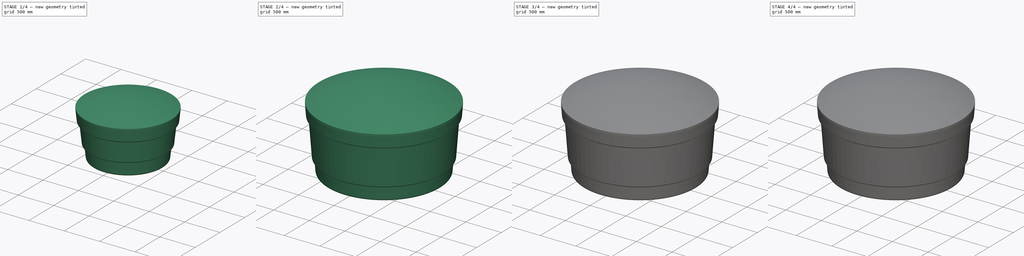
[diagram: build sequence overview — one tinted view per stage of 4, left to right]
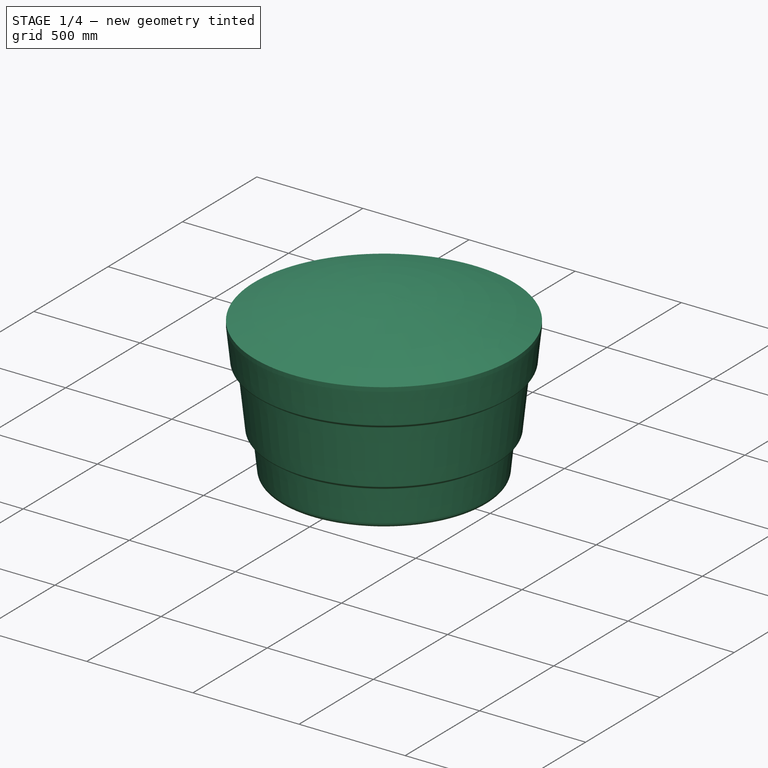
[diagram: stage 1 of 4 — iso view after this stage's code; geometry added in this stage tinted green]
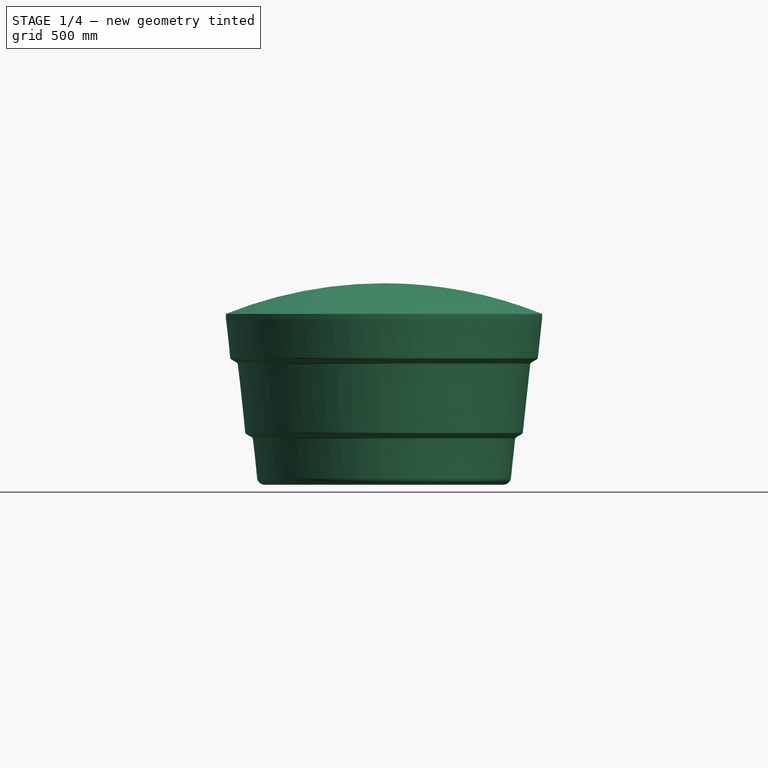
[diagram: stage 1 of 4 — front view after this stage's code; geometry added in this stage tinted green]
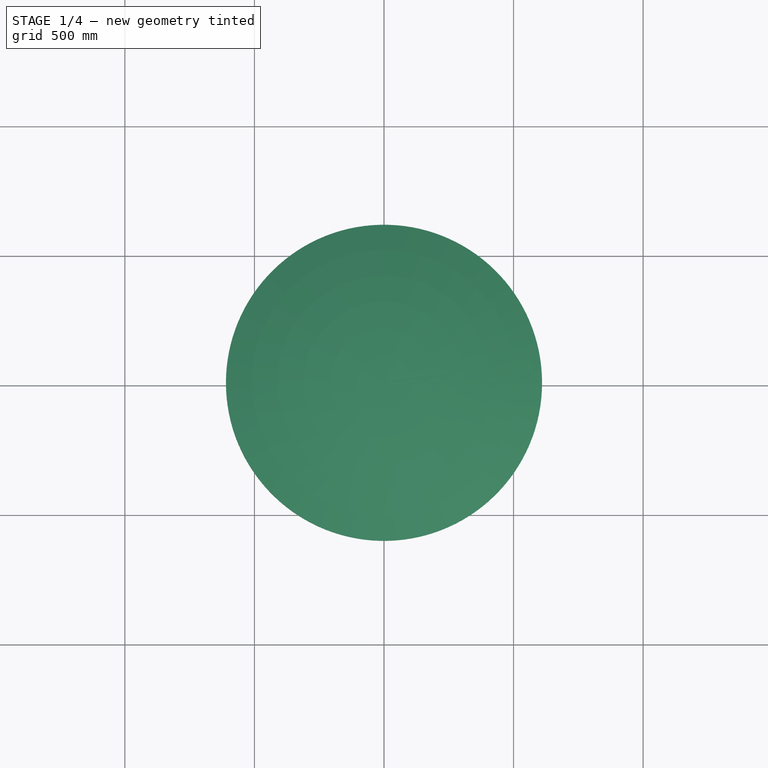
[diagram: stage 1 of 4 — top view after this stage's code; geometry added in this stage tinted green]
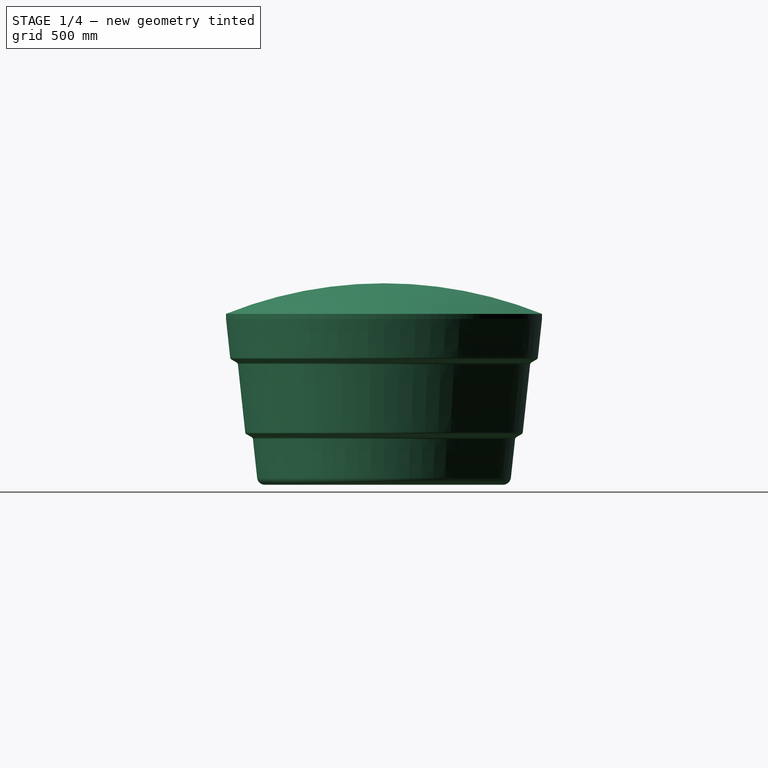
[diagram: stage 1 of 4 — right view after this stage's code; geometry added in this stage tinted green]
FCSTD DOCUMENT  (FreeCAD 0.20R29410 (Git))
Label: Caixa de água
License: All rights reserved
objects: Sketcher::SketchObject×8, Part::Revolution×8, Part::Compound×4
note: 20 computed .brp shape members not serialized (recipe doc carries the construction recipe); baked Part::Feature solids carry a one-line shape summary decoded from their .brp

FEATURE [Sketcher::SketchObject] Sketch006
  FullyConstrained = true
  Placement = pos=(0,0,0) rot=(1,0,0;1.5708rad)
  sketch-geometry (13):
    g0: LineSegment StartX=0 StartY=0 StartZ=0 EndX=460 EndY=0 EndZ=0
    g1: LineSegment StartX=489.827 StartY=26.7815 StartZ=0 EndX=505.92 EndY=175.916 EndZ=0
    g2: LineSegment StartX=510.862 StartY=183.503 StartZ=0 EndX=530.862 EndY=195.05 EndZ=0
    g3: LineSegment StartX=535.804 StartY=202.638 StartZ=0 EndX=564.023 EndY=464.144 EndZ=0
    g4: LineSegment StartX=568.965 StartY=471.731 StartZ=0 EndX=588.965 EndY=483.278 EndZ=0
    g5: LineSegment StartX=593.907 StartY=490.866 StartZ=0 EndX=610 EndY=640 EndZ=0
    g6: ArcOfCircle CenterX=460 CenterY=30 CenterZ=0 NormalX=0 NormalY=0 NormalZ=1 AngleXU=0 Radius=30 StartAngle=4.71239 EndAngle=6.17569
    g7: ArcOfCircle CenterX=515.862 CenterY=174.843 CenterZ=0 NormalX=0 NormalY=0 NormalZ=1 AngleXU=0 Radius=10 StartAngle=2.0944 EndAngle=3.0341
    g8: ArcOfCircle CenterX=525.862 CenterY=203.71 CenterZ=0 NormalX=0 NormalY=0 NormalZ=1 AngleXU=0 Radius=10 StartAngle=5.23599 EndAngle=6.17569
    g9: ArcOfCircle CenterX=573.965 CenterY=463.071 CenterZ=0 NormalX=0 NormalY=0 NormalZ=1 AngleXU=0 Radius=10 StartAngle=2.0944 EndAngle=3.0341
    g10: ArcOfCircle CenterX=583.965 CenterY=491.939 CenterZ=0 NormalX=0 NormalY=0 NormalZ=1 AngleXU=0 Radius=10 StartAngle=5.23599 EndAngle=6.17569
    g11: LineSegment StartX=610 StartY=640 StartZ=0 EndX=0 EndY=640 EndZ=0
    g12: LineSegment StartX=0 StartY=640 StartZ=0 EndX=0 EndY=0 EndZ=0
  constraints (33):
    c: Coincident(g0,g-1)
    c: Horizontal(g0)
    c: Parallel(g1,g3)
    c: Parallel(g3,g5)
    c: Tangent(g0,g6) = -1.5708
    c: Tangent(g1,g6) = -1.5708
    c: Tangent(g1,g7) = 1.5708
    c: Tangent(g2,g7) = 1.5708
    c: Tangent(g2,g8) = -1.5708
    c: Tangent(g3,g8) = -1.5708
    c: Tangent(g3,g9) = 1.5708
    c: Tangent(g4,g9) = 1.5708
    c: Tangent(g4,g10) = -1.5708
    c: Tangent(g5,g10) = -1.5708
    c: Radius(g6) = 30
    c: Radius(g7) = 10
    c: Equal(g8,g7)
    c: Equal(g8,g9)
    c: Equal(g9,g10)
    c: DistanceX(g4,g4) = 20
    c: Equal(g2,g4)
    c: DistanceX(g0,g0) = 460
    c: Coincident(g11,g5)
    c: PointOnObject(g11,g-2)
    c: Horizontal(g11)
    c: DistanceX(g11,g11) = 610
    c: Distance(g5) = 150
    c: DistanceY(g0,g11) = 640
    c: Distance(g1) = 150
    c: Angle(g4) = 0.523599
    c: Parallel(g4,g2)
    c: Coincident(g12,g11)
    c: Coincident(g12,g0)
FEATURE [Part::Revolution] Revolve006
  Angle = 360
  Axis = (0,0,1)
  Base = (0,0,0)
  FaceMakerClass = Part::FaceMakerBullseye
  Solid = true
  Source = -> Sketch006
  Symmetric = false
FEATURE [Sketcher::SketchObject] Sketch007
  FullyConstrained = true
  Placement = pos=(0,0,0) rot=(1,0,0;1.5708rad)
  sketch-geometry (6):
    g0: ArcOfCircle CenterX=0 CenterY=-1515.69 CenterZ=0 NormalX=0 NormalY=0 NormalZ=1 AngleXU=0 Radius=1635.69 StartAngle=1.18863 EndAngle=1.5708
    g1: LineSegment StartX=610 StartY=2 StartZ=0 EndX=610 EndY=-18 EndZ=0
    g2: LineSegment StartX=610 StartY=-18 StartZ=0 EndX=607 EndY=-18 EndZ=0
    g3: LineSegment StartX=607 StartY=-18 StartZ=0 EndX=607 EndY=2.274e-13 EndZ=0
    g4: ArcOfCircle CenterX=0 CenterY=-1516.07 CenterZ=0 NormalX=0 NormalY=0 NormalZ=1 AngleXU=0 Radius=1633.07 StartAngle=1.18996 EndAngle=1.5708
    g5: LineSegment StartX=1.002e-13 StartY=120 StartZ=0 EndX=1e-13 EndY=117 EndZ=0
  constraints (20):
    c: DistanceX(g-1,g0) = 610
    c: PointOnObject(g0,g-2)
    c: Vertical(g1)
    c: Coincident(g2,g1)
    c: Horizontal(g2)
    c: Coincident(g3,g2)
    c: Vertical(g3)
    c: DistanceY(g-1,g0) = 120
    c: Coincident(g4,g3)
    c: PointOnObject(g4,g-2)
    c: DistanceX(g2,g2) = 3
    c: Coincident(g1,g0)
    c: DistanceY(g4,g0) = 3
    c: DistanceY(g3,g0) = 2
    c: PointOnObject(g4,g-2)
    c: PointOnObject(g0,g-2)
    c: PointOnObject(g3,g-1)
    c: DistanceY(g1,g1) = 20
    c: Coincident(g5,g0)
    c: Coincident(g5,g4)
FEATURE [Part::Revolution] Revolve007
  Angle = 360
  Axis = (0,0,1)
  Base = (0,0,0)
  FaceMakerClass = Part::FaceMakerBullseye
  Placement = pos=(0,0,657.411) rot=(0,0,1;0rad)
  Solid = true
  Source = -> Sketch007
  Symmetric = false
FEATURE [Part::Compound] Compound003  label="Caixa de água 500 L"
  Links = -> [Revolve006,Revolve007]
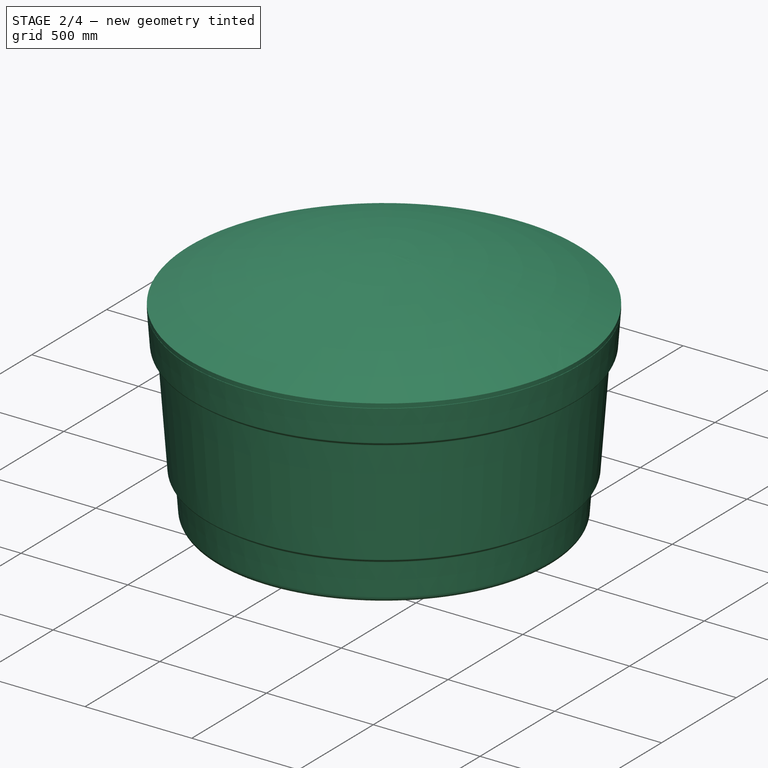
[diagram: stage 2 of 4 — iso view after this stage's code; geometry added in this stage tinted green]
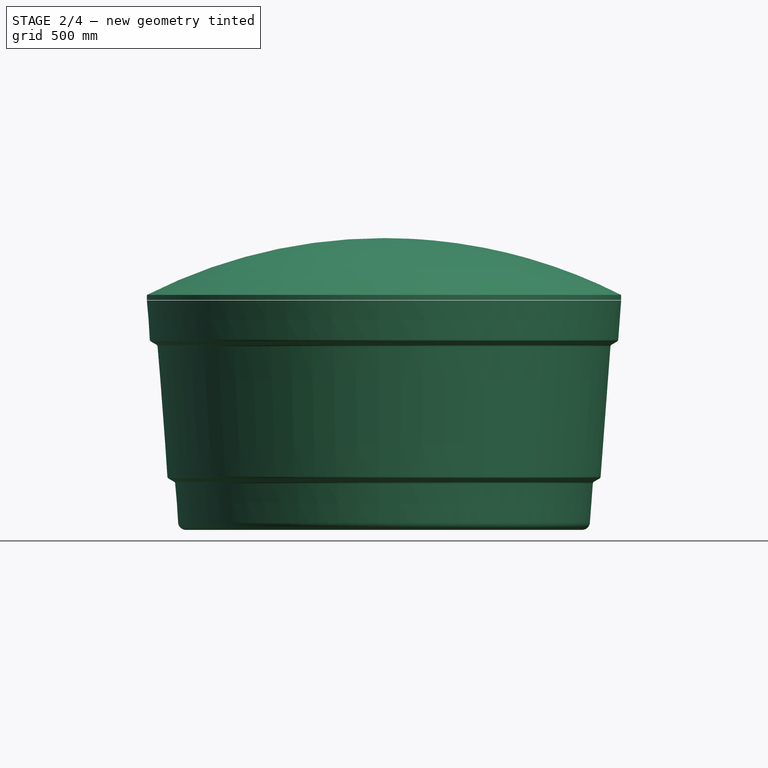
[diagram: stage 2 of 4 — front view after this stage's code; geometry added in this stage tinted green]
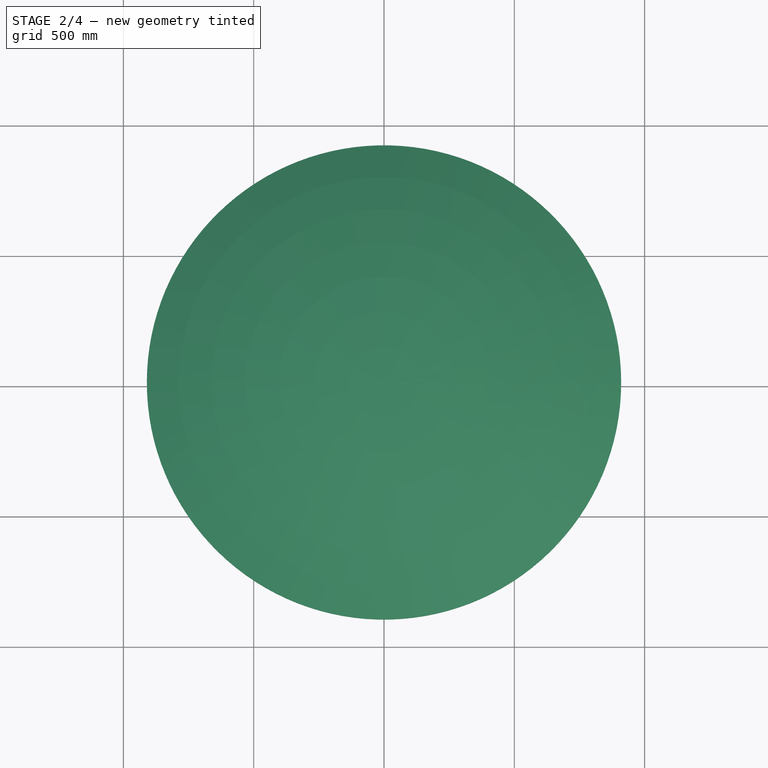
[diagram: stage 2 of 4 — top view after this stage's code; geometry added in this stage tinted green]
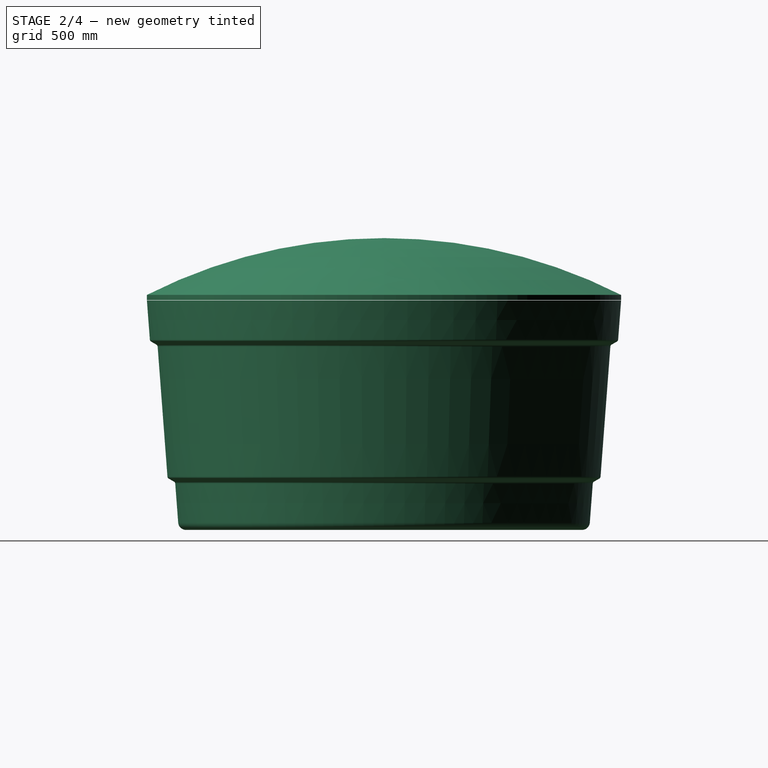
[diagram: stage 2 of 4 — right view after this stage's code; geometry added in this stage tinted green]
FEATURE [Sketcher::SketchObject] Sketch004
  FullyConstrained = true
  Placement = pos=(0,0,0) rot=(1,0,0;1.5708rad)
  sketch-geometry (13):
    g0: LineSegment StartX=0 StartY=0 StartZ=0 EndX=760 EndY=0 EndZ=0
    g1: LineSegment StartX=789.915 StartY=27.742 StartZ=0 EndX=801.205 EndY=177.317 EndZ=0
    g2: LineSegment StartX=806.177 StartY=185.224 StartZ=0 EndX=826.177 EndY=196.771 EndZ=0
    g3: LineSegment StartX=831.148 StartY=204.679 StartZ=0 EndX=868.767 EndY=703.063 EndZ=0
    g4: LineSegment StartX=873.738 StartY=710.971 StartZ=0 EndX=893.738 EndY=722.518 EndZ=0
    g5: LineSegment StartX=898.71 StartY=730.425 StartZ=0 EndX=910 EndY=880 EndZ=0
    g6: ArcOfCircle CenterX=760 CenterY=30 CenterZ=0 NormalX=0 NormalY=0 NormalZ=1 AngleXU=0 Radius=30 StartAngle=4.71239 EndAngle=6.20785
    g7: ArcOfCircle CenterX=811.177 CenterY=176.564 CenterZ=0 NormalX=0 NormalY=0 NormalZ=1 AngleXU=0 Radius=10 StartAngle=2.0944 EndAngle=3.06625
    g8: ArcOfCircle CenterX=821.177 CenterY=205.431 CenterZ=0 NormalX=0 NormalY=0 NormalZ=1 AngleXU=0 Radius=10 StartAngle=5.23599 EndAngle=6.20785
    g9: ArcOfCircle CenterX=878.738 CenterY=702.311 CenterZ=0 NormalX=0 NormalY=0 NormalZ=1 AngleXU=0 Radius=10 StartAngle=2.0944 EndAngle=3.06625
    g10: ArcOfCircle CenterX=888.738 CenterY=731.178 CenterZ=0 NormalX=0 NormalY=0 NormalZ=1 AngleXU=0 Radius=10 StartAngle=5.23599 EndAngle=6.20785
    g11: LineSegment StartX=910 StartY=880 StartZ=0 EndX=0 EndY=880 EndZ=0
    g12: LineSegment StartX=0 StartY=880 StartZ=0 EndX=0 EndY=0 EndZ=0
  constraints (33):
    c: Coincident(g0,g-1)
    c: Horizontal(g0)
    c: Parallel(g1,g3)
    c: Parallel(g3,g5)
    c: Tangent(g0,g6) = -1.5708
    c: Tangent(g1,g6) = -1.5708
    c: Tangent(g1,g7) = 1.5708
    c: Tangent(g2,g7) = 1.5708
    c: Tangent(g2,g8) = -1.5708
    c: Tangent(g3,g8) = -1.5708
    c: Tangent(g3,g9) = 1.5708
    c: Tangent(g4,g9) = 1.5708
    c: Tangent(g4,g10) = -1.5708
    c: Tangent(g5,g10) = -1.5708
    c: Radius(g6) = 30
    c: Radius(g7) = 10
    c: Equal(g8,g7)
    c: Equal(g8,g9)
    c: Equal(g9,g10)
    c: DistanceX(g4,g4) = 20
    c: Equal(g2,g4)
    c: DistanceX(g0,g0) = 760
    c: Coincident(g11,g5)
    c: PointOnObject(g11,g-2)
    c: Horizontal(g11)
    c: DistanceX(g11,g11) = 910
    c: Distance(g5) = 150
    c: DistanceY(g0,g11) = 880
    c: Distance(g1) = 150
    c: Angle(g4) = 0.523599
    c: Parallel(g4,g2)
    c: Coincident(g12,g11)
    c: Coincident(g12,g0)
FEATURE [Part::Revolution] Revolve004
  Angle = 360
  Axis = (0,0,1)
  Base = (0,0,0)
  FaceMakerClass = Part::FaceMakerBullseye
  Solid = true
  Source = -> Sketch004
  Symmetric = false
FEATURE [Sketcher::SketchObject] Sketch005
  FullyConstrained = true
  Placement = pos=(0,0,0) rot=(1,0,0;1.5708rad)
  sketch-geometry (6):
    g0: ArcOfCircle CenterX=0 CenterY=-1788.31 CenterZ=0 NormalX=0 NormalY=0 NormalZ=1 AngleXU=0 Radius=2008.31 StartAngle=1.10054 EndAngle=1.5708
    g1: LineSegment StartX=910 StartY=2 StartZ=0 EndX=910 EndY=-18 EndZ=0
    g2: LineSegment StartX=910 StartY=-18 StartZ=0 EndX=907 EndY=-18 EndZ=0
    g3: LineSegment StartX=907 StartY=-18 StartZ=0 EndX=907 EndY=-2.274e-13 EndZ=0
    g4: ArcOfCircle CenterX=0 CenterY=-1787 CenterZ=0 NormalX=0 NormalY=0 NormalZ=1 AngleXU=0 Radius=2004 StartAngle=1.10112 EndAngle=1.5708
    g5: LineSegment StartX=1.23e-13 StartY=220 StartZ=0 EndX=0 EndY=217 EndZ=0
  constraints (20):
    c: DistanceX(g-1,g0) = 910
    c: PointOnObject(g0,g-2)
    c: Vertical(g1)
    c: Coincident(g2,g1)
    c: Horizontal(g2)
    c: Coincident(g3,g2)
    c: Vertical(g3)
    c: DistanceY(g-1,g0) = 220
    c: Coincident(g4,g3)
    c: PointOnObject(g4,g-2)
    c: DistanceX(g2,g2) = 3
    c: Coincident(g1,g0)
    c: DistanceY(g4,g0) = 3
    c: DistanceY(g3,g0) = 2
    c: PointOnObject(g4,g-2)
    c: PointOnObject(g0,g-2)
    c: PointOnObject(g3,g-1)
    c: DistanceY(g1,g1) = 20
    c: Coincident(g5,g0)
    c: Coincident(g5,g4)
FEATURE [Part::Revolution] Revolve005
  Angle = 360
  Axis = (0,0,1)
  Base = (0,0,0)
  FaceMakerClass = Part::FaceMakerBullseye
  Placement = pos=(0,0,899.521) rot=(0,0,1;0rad)
  Solid = true
  Source = -> Sketch005
  Symmetric = false
FEATURE [Part::Compound] Compound002  label="Caixa de água 2000 L"
  Links = -> [Revolve004,Revolve005]
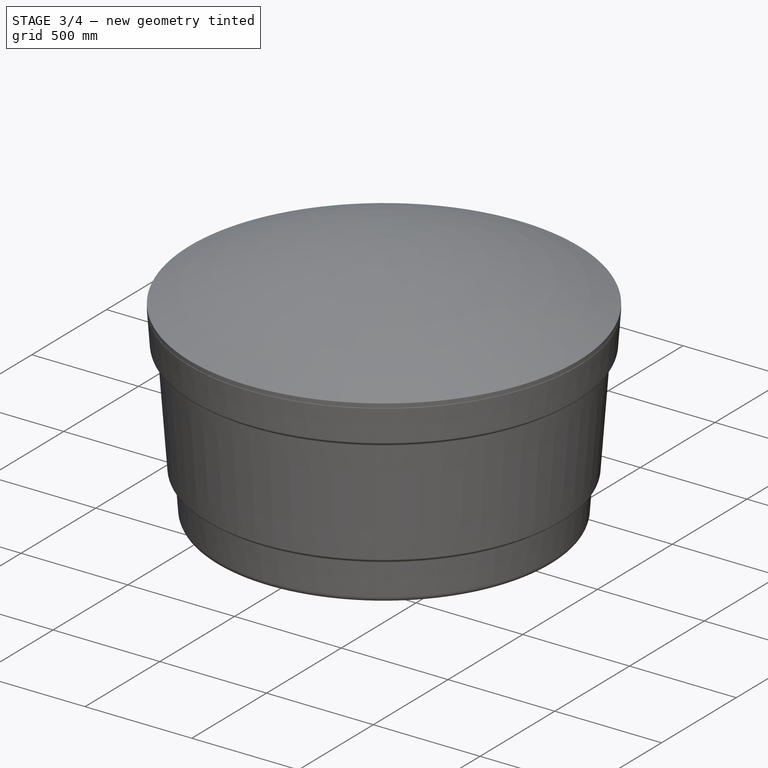
[diagram: stage 3 of 4 — iso view after this stage's code; geometry added in this stage tinted green]
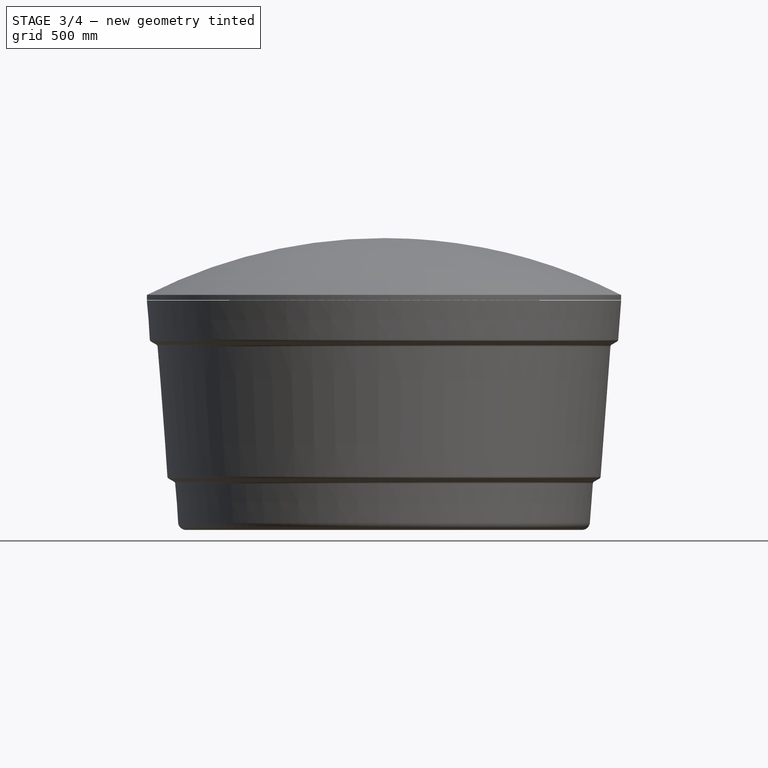
[diagram: stage 3 of 4 — front view after this stage's code; geometry added in this stage tinted green]
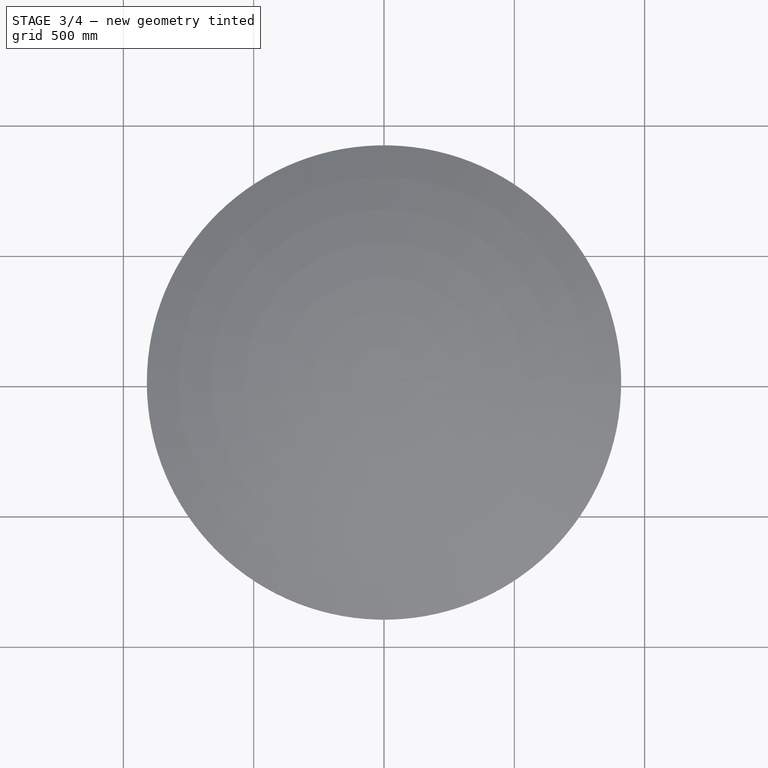
[diagram: stage 3 of 4 — top view after this stage's code; geometry added in this stage tinted green]
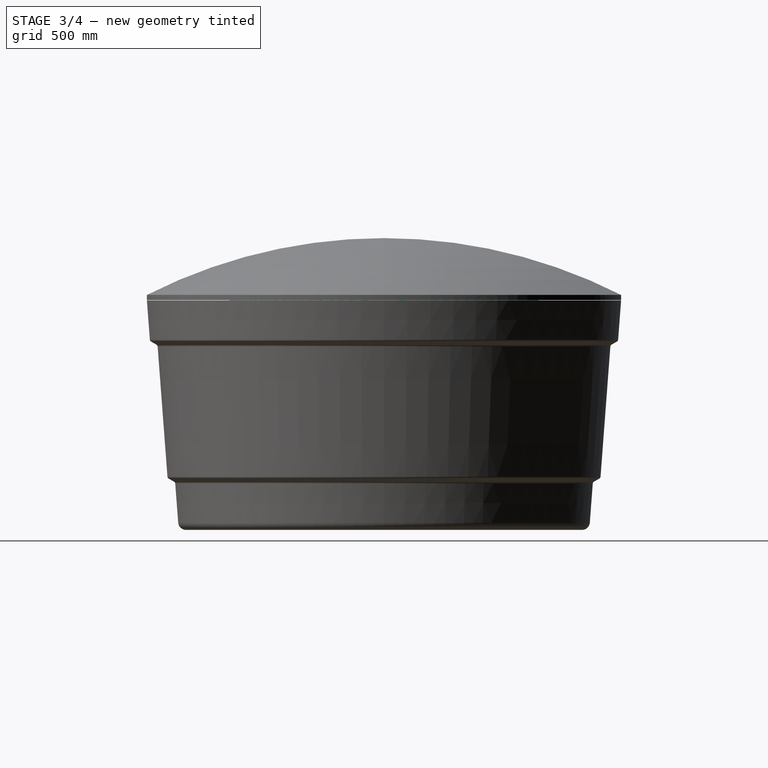
[diagram: stage 3 of 4 — right view after this stage's code; geometry added in this stage tinted green]
FEATURE [Sketcher::SketchObject] Sketch002
  FullyConstrained = true
  Placement = pos=(0,0,0) rot=(1,0,0;1.5708rad)
  sketch-geometry (13):
    g0: LineSegment StartX=0 StartY=0 StartZ=0 EndX=700 EndY=0 EndZ=0
    g1: LineSegment StartX=729.882 StartY=27.3452 StartZ=0 EndX=743.156 EndY=176.757 EndZ=0
    g2: LineSegment StartX=748.117 StartY=184.532 StartZ=0 EndX=768.117 EndY=196.079 EndZ=0
    g3: LineSegment StartX=773.078 StartY=203.854 StartZ=0 EndX=806.805 EndY=583.491 EndZ=0
    g4: LineSegment StartX=811.765 StartY=591.266 StartZ=0 EndX=831.765 EndY=602.813 EndZ=0
    g5: LineSegment StartX=836.726 StartY=610.588 StartZ=0 EndX=850 EndY=760 EndZ=0
    g6: ArcOfCircle CenterX=700 CenterY=30 CenterZ=0 NormalX=0 NormalY=0 NormalZ=1 AngleXU=0 Radius=30 StartAngle=4.71239 EndAngle=6.19458
    g7: ArcOfCircle CenterX=753.117 CenterY=175.872 CenterZ=0 NormalX=0 NormalY=0 NormalZ=1 AngleXU=0 Radius=10 StartAngle=2.0944 EndAngle=3.05298
    g8: ArcOfCircle CenterX=763.117 CenterY=204.739 CenterZ=0 NormalX=0 NormalY=0 NormalZ=1 AngleXU=0 Radius=10 StartAngle=5.23599 EndAngle=6.19458
    g9: ArcOfCircle CenterX=816.765 CenterY=582.606 CenterZ=0 NormalX=0 NormalY=0 NormalZ=1 AngleXU=0 Radius=10 StartAngle=2.0944 EndAngle=3.05298
    g10: ArcOfCircle CenterX=826.765 CenterY=611.473 CenterZ=0 NormalX=0 NormalY=0 NormalZ=1 AngleXU=0 Radius=10 StartAngle=5.23599 EndAngle=6.19458
    g11: LineSegment StartX=850 StartY=760 StartZ=0 EndX=0 EndY=760 EndZ=0
    g12: LineSegment StartX=0 StartY=760 StartZ=0 EndX=0 EndY=0 EndZ=0
  constraints (33):
    c: Coincident(g0,g-1)
    c: Horizontal(g0)
    c: Parallel(g1,g3)
    c: Parallel(g3,g5)
    c: Tangent(g0,g6) = -1.5708
    c: Tangent(g1,g6) = -1.5708
    c: Tangent(g1,g7) = 1.5708
    c: Tangent(g2,g7) = 1.5708
    c: Tangent(g2,g8) = -1.5708
    c: Tangent(g3,g8) = -1.5708
    c: Tangent(g3,g9) = 1.5708
    c: Tangent(g4,g9) = 1.5708
    c: Tangent(g4,g10) = -1.5708
    c: Tangent(g5,g10) = -1.5708
    c: Radius(g6) = 30
    c: Radius(g7) = 10
    c: Equal(g8,g7)
    c: Equal(g8,g9)
    c: Equal(g9,g10)
    c: DistanceX(g4,g4) = 20
    c: Equal(g2,g4)
    c: DistanceX(g0,g0) = 700
    c: Coincident(g11,g5)
    c: PointOnObject(g11,g-2)
    c: Horizontal(g11)
    c: DistanceX(g11,g11) = 850
    c: Distance(g5) = 150
    c: DistanceY(g0,g11) = 760
    c: Distance(g1) = 150
    c: Angle(g4) = 0.523599
    c: Parallel(g4,g2)
    c: Coincident(g12,g11)
    c: Coincident(g12,g0)
FEATURE [Part::Revolution] Revolve002
  Angle = 360
  Axis = (0,0,1)
  Base = (0,0,0)
  FaceMakerClass = Part::FaceMakerBullseye
  Solid = true
  Source = -> Sketch002
  Symmetric = false
FEATURE [Sketcher::SketchObject] Sketch003
  FullyConstrained = true
  Placement = pos=(0,0,0) rot=(1,0,0;1.5708rad)
  sketch-geometry (6):
    g0: ArcOfCircle CenterX=0 CenterY=-1671.88 CenterZ=0 NormalX=0 NormalY=0 NormalZ=1 AngleXU=0 Radius=1881.88 StartAngle=1.09619 EndAngle=1.5708
    g1: LineSegment StartX=860 StartY=2 StartZ=0 EndX=860 EndY=-18 EndZ=0
    g2: LineSegment StartX=860 StartY=-18 StartZ=0 EndX=857 EndY=-18 EndZ=0
    g3: LineSegment StartX=857 StartY=-18 StartZ=0 EndX=857 EndY=0 EndZ=0
    g4: ArcOfCircle CenterX=0 CenterY=-1670.53 CenterZ=0 NormalX=0 NormalY=0 NormalZ=1 AngleXU=0 Radius=1877.53 StartAngle=1.09679 EndAngle=1.5708
    g5: LineSegment StartX=1.152e-13 StartY=210 StartZ=0 EndX=0 EndY=207 EndZ=0
  constraints (20):
    c: DistanceX(g-1,g0) = 860
    c: PointOnObject(g0,g-2)
    c: Vertical(g1)
    c: Coincident(g2,g1)
    c: Horizontal(g2)
    c: Coincident(g3,g2)
    c: Vertical(g3)
    c: DistanceY(g-1,g0) = 210
    c: Coincident(g4,g3)
    c: PointOnObject(g4,g-2)
    c: DistanceX(g2,g2) = 3
    c: Coincident(g1,g0)
    c: DistanceY(g4,g0) = 3
    c: DistanceY(g3,g0) = 2
    c: PointOnObject(g4,g-2)
    c: PointOnObject(g0,g-2)
    c: PointOnObject(g3,g-1)
    c: DistanceY(g1,g1) = 20
    c: Coincident(g5,g0)
    c: Coincident(g5,g4)
FEATURE [Part::Revolution] Revolve003
  Angle = 360
  Axis = (0,0,1)
  Base = (0,0,0)
  FaceMakerClass = Part::FaceMakerBullseye
  Placement = pos=(0,0,768.096) rot=(0,0,1;0rad)
  Solid = true
  Source = -> Sketch003
  Symmetric = false
FEATURE [Part::Compound] Compound001  label="Caixa de água 1500 L"
  Links = -> [Revolve002,Revolve003]
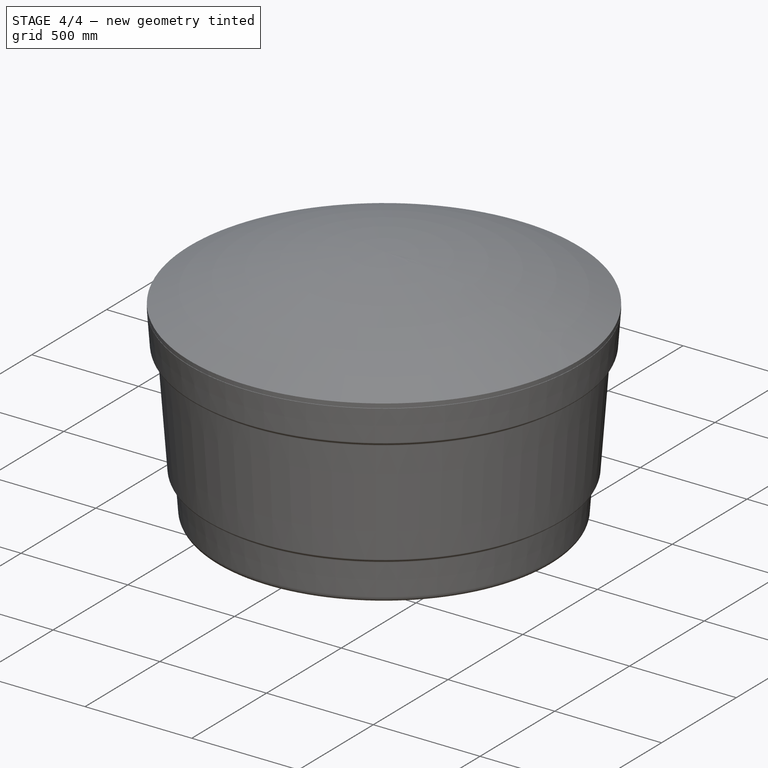
[diagram: stage 4 of 4 — iso view after this stage's code; geometry added in this stage tinted green]
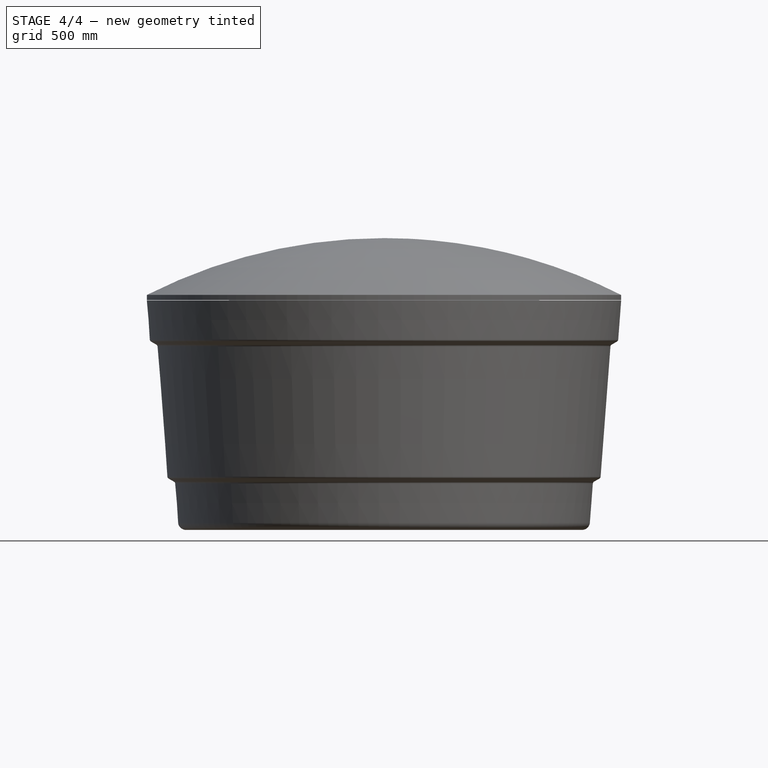
[diagram: stage 4 of 4 — front view after this stage's code; geometry added in this stage tinted green]
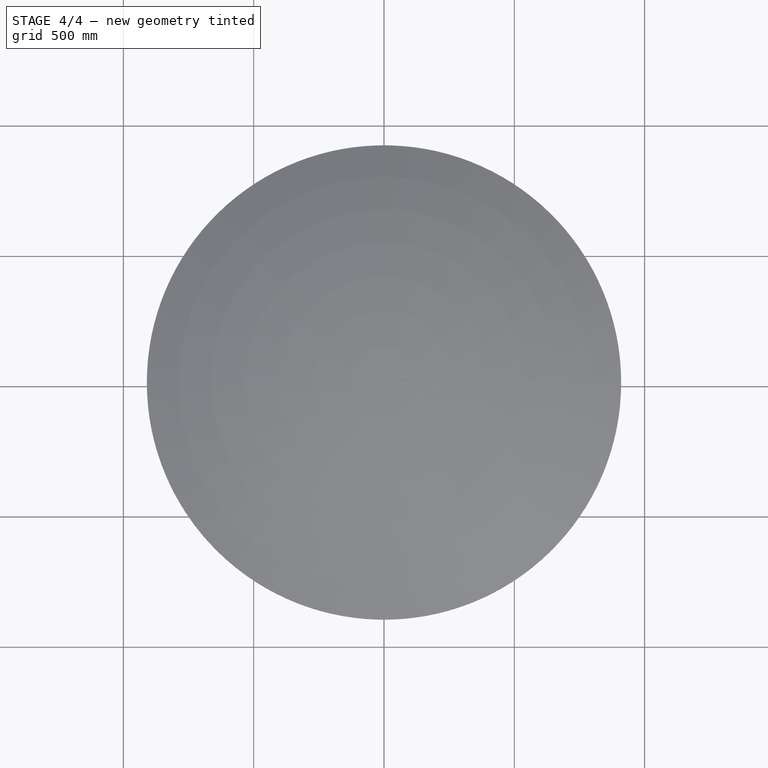
[diagram: stage 4 of 4 — top view after this stage's code; geometry added in this stage tinted green]
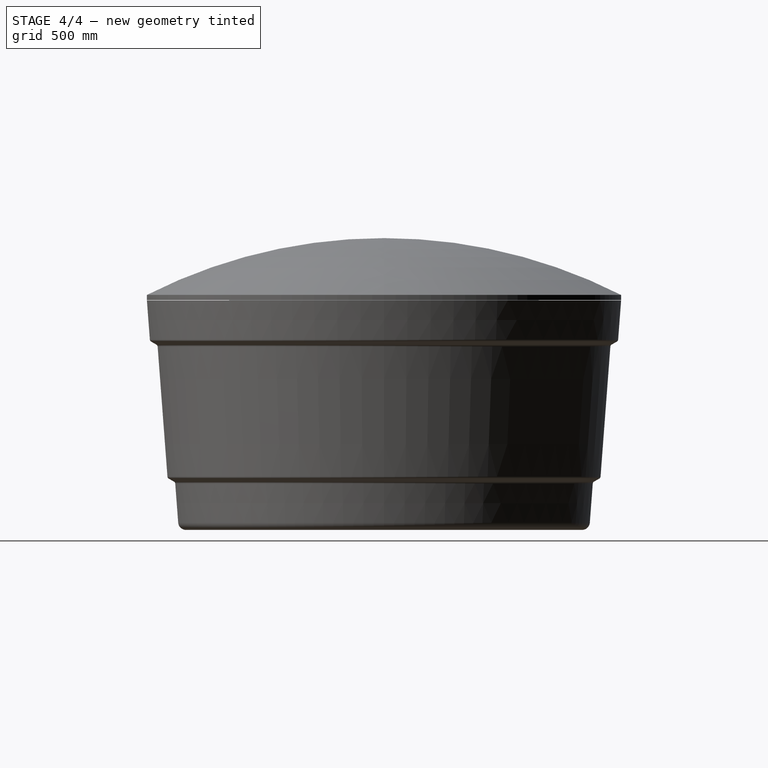
[diagram: stage 4 of 4 — right view after this stage's code; geometry added in this stage tinted green]
FEATURE [Sketcher::SketchObject] Sketch
  FullyConstrained = true
  Placement = pos=(0,0,0) rot=(1,0,0;1.5708rad)
  sketch-geometry (13):
    g0: LineSegment StartX=0 StartY=0 StartZ=0 EndX=580 EndY=0 EndZ=0
    g1: LineSegment StartX=609.792 StartY=26.4763 StartZ=0 EndX=627.411 EndY=175.438 EndZ=0
    g2: LineSegment StartX=632.342 StartY=182.924 StartZ=0 EndX=652.342 EndY=194.471 EndZ=0
    g3: LineSegment StartX=657.272 StartY=201.956 StartZ=0 EndX=702.52 EndY=584.52 EndZ=0
    g4: LineSegment StartX=707.451 StartY=592.006 StartZ=0 EndX=727.451 EndY=603.553 EndZ=0
    g5: LineSegment StartX=732.382 StartY=611.038 StartZ=0 EndX=750 EndY=760 EndZ=0
    g6: ArcOfCircle CenterX=580 CenterY=30 CenterZ=0 NormalX=0 NormalY=0 NormalZ=1 AngleXU=0 Radius=30 StartAngle=4.71239 EndAngle=6.16546
    g7: ArcOfCircle CenterX=637.342 CenterY=174.263 CenterZ=0 NormalX=0 NormalY=0 NormalZ=1 AngleXU=0 Radius=10 StartAngle=2.0944 EndAngle=3.02386
    g8: ArcOfCircle CenterX=647.342 CenterY=203.131 CenterZ=0 NormalX=0 NormalY=0 NormalZ=1 AngleXU=0 Radius=10 StartAngle=5.23599 EndAngle=6.16546
    g9: ArcOfCircle CenterX=712.451 CenterY=583.345 CenterZ=0 NormalX=0 NormalY=0 NormalZ=1 AngleXU=0 Radius=10 StartAngle=2.0944 EndAngle=3.02386
    g10: ArcOfCircle CenterX=722.451 CenterY=612.213 CenterZ=0 NormalX=0 NormalY=0 NormalZ=1 AngleXU=0 Radius=10 StartAngle=5.23599 EndAngle=6.16546
    g11: LineSegment StartX=750 StartY=760 StartZ=0 EndX=0 EndY=760 EndZ=0
    g12: LineSegment StartX=0 StartY=760 StartZ=0 EndX=0 EndY=0 EndZ=0
  constraints (33):
    c: Coincident(g0,g-1)
    c: Horizontal(g0)
    c: Parallel(g1,g3)
    c: Parallel(g3,g5)
    c: Tangent(g0,g6) = -1.5708
    c: Tangent(g1,g6) = -1.5708
    c: Tangent(g1,g7) = 1.5708
    c: Tangent(g2,g7) = 1.5708
    c: Tangent(g2,g8) = -1.5708
    c: Tangent(g3,g8) = -1.5708
    c: Tangent(g3,g9) = 1.5708
    c: Tangent(g4,g9) = 1.5708
    c: Tangent(g4,g10) = -1.5708
    c: Tangent(g5,g10) = -1.5708
    c: Radius(g6) = 30
    c: Radius(g7) = 10
    c: Equal(g8,g7)
    c: Equal(g8,g9)
    c: Equal(g9,g10)
    c: DistanceX(g4,g4) = 20
    c: Equal(g2,g4)
    c: DistanceX(g0,g0) = 580
    c: Coincident(g11,g5)
    c: PointOnObject(g11,g-2)
    c: Horizontal(g11)
    c: DistanceX(g11,g11) = 750
    c: Distance(g5) = 150
    c: DistanceY(g0,g11) = 760
    c: Distance(g1) = 150
    c: Angle(g4) = 0.523599
    c: Parallel(g4,g2)
    c: Coincident(g12,g11)
    c: Coincident(g12,g0)
FEATURE [Part::Revolution] Revolve
  Angle = 360
  Axis = (0,0,1)
  Base = (0,0,0)
  FaceMakerClass = Part::FaceMakerBullseye
  Solid = true
  Source = -> Sketch
  Symmetric = false
FEATURE [Sketcher::SketchObject] Sketch001
  FullyConstrained = true
  Placement = pos=(0,0,0) rot=(1,0,0;1.5708rad)
  sketch-geometry (6):
    g0: ArcOfCircle CenterX=0 CenterY=-1282.46 CenterZ=0 NormalX=0 NormalY=0 NormalZ=1 AngleXU=0 Radius=1492.46 StartAngle=1.03651 EndAngle=1.5708
    g1: LineSegment StartX=760 StartY=2 StartZ=0 EndX=760 EndY=-18 EndZ=0
    g2: LineSegment StartX=760 StartY=-18 StartZ=0 EndX=757 EndY=-18 EndZ=0
    g3: LineSegment StartX=757 StartY=-18 StartZ=0 EndX=757 EndY=0 EndZ=0
    g4: ArcOfCircle CenterX=0 CenterY=-1280.68 CenterZ=0 NormalX=0 NormalY=0 NormalZ=1 AngleXU=0 Radius=1487.68 StartAngle=1.03695 EndAngle=1.5708
    g5: LineSegment StartX=9.14e-14 StartY=210 StartZ=0 EndX=9.11e-14 EndY=207 EndZ=0
  constraints (20):
    c: DistanceX(g-1,g0) = 760
    c: PointOnObject(g0,g-2)
    c: Vertical(g1)
    c: Coincident(g2,g1)
    c: Horizontal(g2)
    c: Coincident(g3,g2)
    c: Vertical(g3)
    c: DistanceY(g-1,g0) = 210
    c: Coincident(g4,g3)
    c: PointOnObject(g4,g-2)
    c: DistanceX(g2,g2) = 3
    c: Coincident(g1,g0)
    c: DistanceY(g4,g0) = 3
    c: DistanceY(g3,g0) = 2
    c: PointOnObject(g4,g-2)
    c: PointOnObject(g0,g-2)
    c: PointOnObject(g3,g-1)
    c: DistanceY(g1,g1) = 20
    c: Coincident(g5,g0)
    c: Coincident(g5,g4)
FEATURE [Part::Revolution] Revolve001
  Angle = 360
  Axis = (0,0,1)
  Base = (0,0,0)
  FaceMakerClass = Part::FaceMakerBullseye
  Placement = pos=(0,0,768.096) rot=(0,0,1;0rad)
  Solid = true
  Source = -> Sketch001
  Symmetric = false
FEATURE [Part::Compound] Compound  label="Caixa de água 1000 L"
  Links = -> [Revolve,Revolve001]
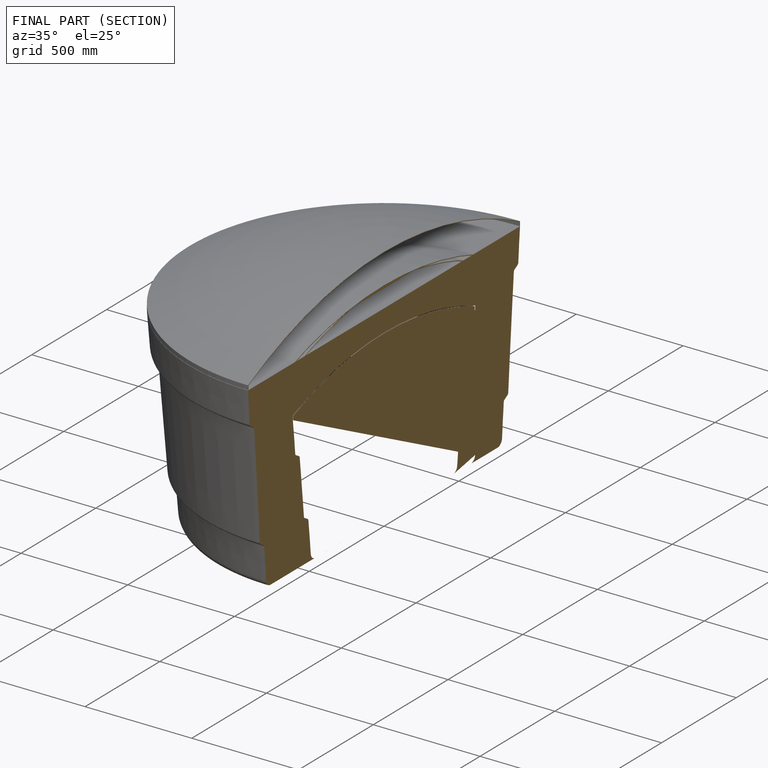
[diagram: finished part — half-section view (interior)]
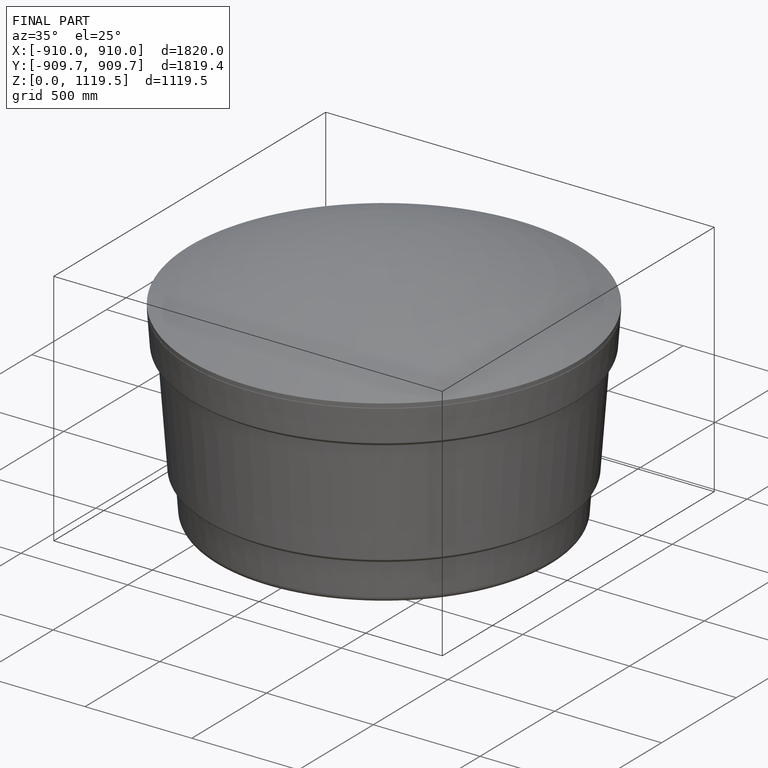
[diagram: finished part — iso view with bounding-box wireframe]
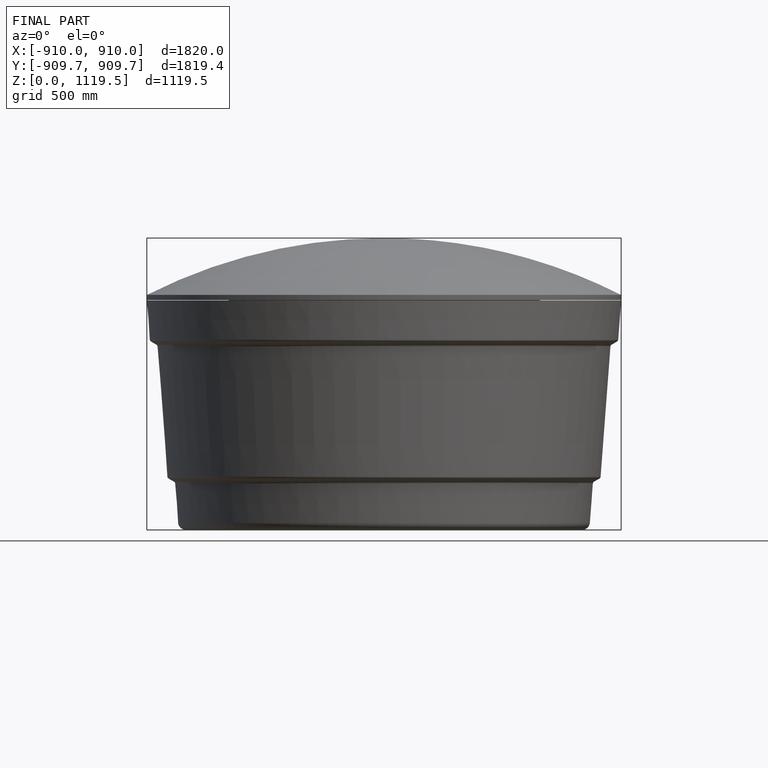
[diagram: finished part — front view with bounding-box wireframe]
